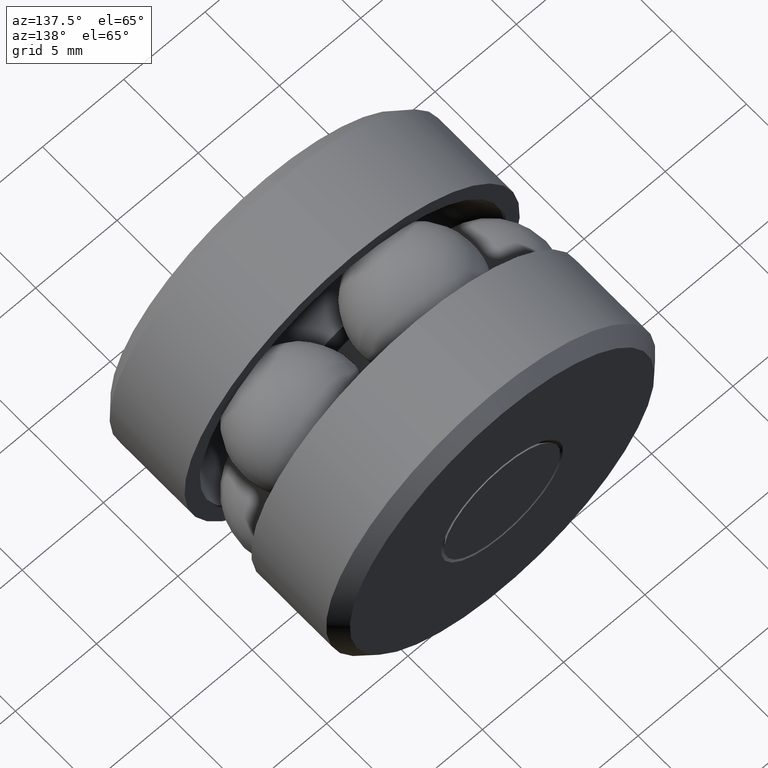
[diagram: clean part render]
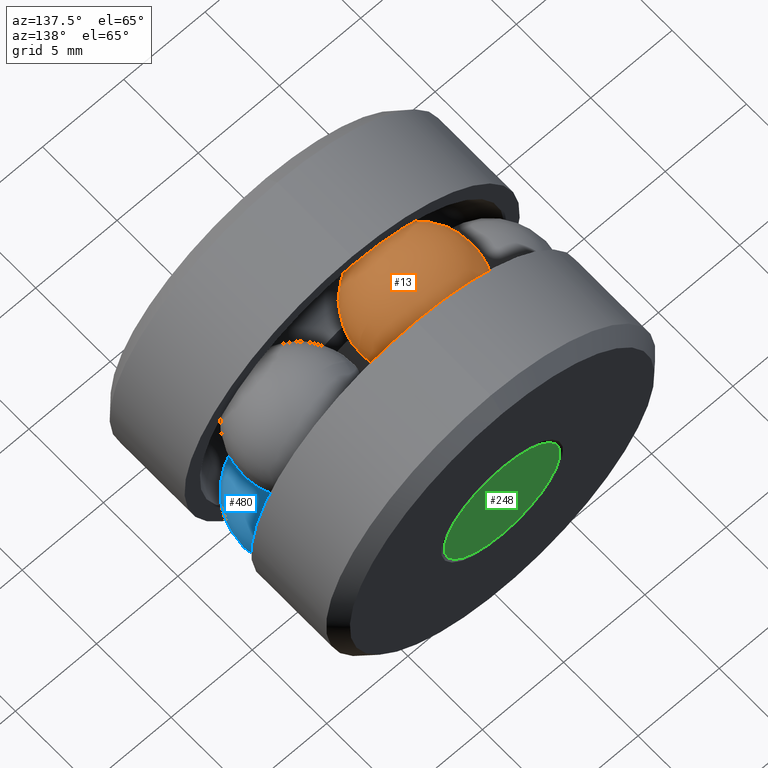
[diagram: same view with three faces highlighted in distinct colors, each labeled with its STEP entity id]
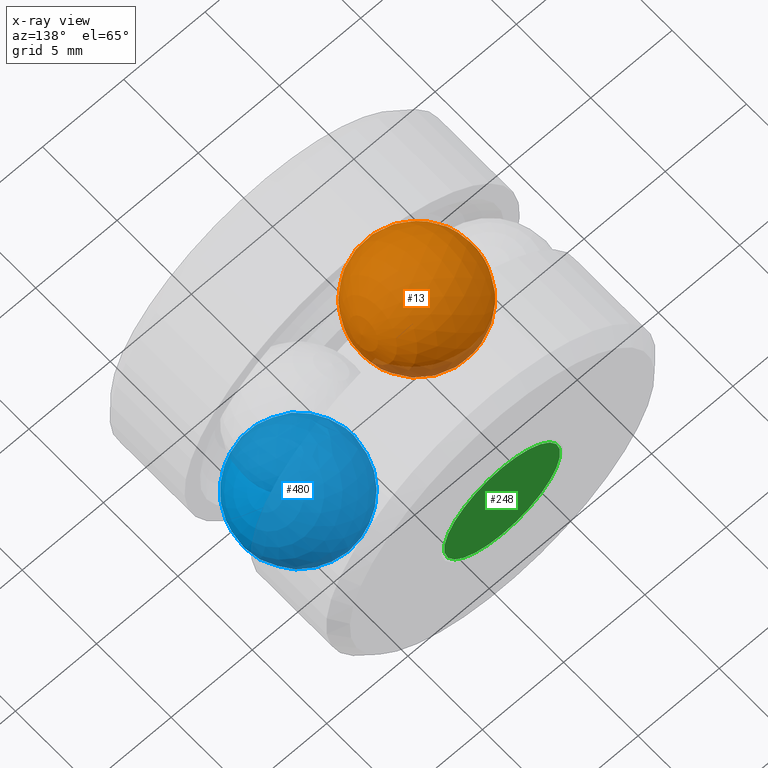
[diagram: x-ray of the same camera — body ghosted, the three highlighted faces saturated]
A machine part, auxiliary view with three faces highlighted in distinct colors.
The next image is the same camera in x-ray (body ghosted, the three faces saturated) — at least one of them is partly hidden behind the body in this view.
Their STEP definitions:

[orange] entity #13 — the highlighted spherical surface has radius 3.5687 mm.
#13 = ADVANCED_FACE ( 'NONE', ( ), #423, .T. ) ;
#217 = AXIS2_PLACEMENT_3D ( 'NONE', #489, #264, #361 ) ;
#264 = DIRECTION ( 'NONE',  ( -0.9510565162951544200, 0.0000000000000000000, -0.3090169943749447300 ) ) ;
#361 = DIRECTION ( 'NONE',  ( 0.3090169943749447300, 0.0000000000000000000, -0.9510565162951544200 ) ) ;
#423 = SPHERICAL_SURFACE ( 'NONE', #217, 0.1405000000000000400 ) ;
#489 = CARTESIAN_POINT ( 'NONE',  ( -0.07934011330576705400, 0.3125000000000000000, 0.2441837605587809400 ) ) ;

[blue] entity #480 — the highlighted spherical surface has radius 3.5687 mm.
#138 = SPHERICAL_SURFACE ( 'NONE', #463, 0.1405000000000000400 ) ;
#169 = CARTESIAN_POINT ( 'NONE',  ( 0.2077151133057663900, 0.3125000000000000000, -0.1509138635260942900 ) ) ;
#228 = DIRECTION ( 'NONE',  ( -0.8090169943749422300, 0.0000000000000000000, 0.5877852522924802400 ) ) ;
#232 = DIRECTION ( 'NONE',  ( 0.5877852522924802400, -0.0000000000000000000, 0.8090169943749422300 ) ) ;
#463 = AXIS2_PLACEMENT_3D ( 'NONE', #169, #232, #228 ) ;
#480 = ADVANCED_FACE ( 'NONE', ( ), #138, .T. ) ;

[green] entity #248 — the highlighted planar face has unit normal (-0, 1, 0).
#36 = CARTESIAN_POINT ( 'NONE',  ( 0.0000000000000000000, 0.6250000000000000000, 0.0000000000000000000 ) ) ;
#64 = VERTEX_POINT ( 'NONE', #205 ) ;
#140 = DIRECTION ( 'NONE',  ( 0.0000000000000000000, 0.0000000000000000000, 1.000000000000000000 ) ) ;
#156 = EDGE_LOOP ( 'NONE', ( #198 ) ) ;
#158 = DIRECTION ( 'NONE',  ( -0.0000000000000000000, 1.000000000000000000, 0.0000000000000000000 ) ) ;
#198 = ORIENTED_EDGE ( 'NONE', *, *, #517, .T. ) ;
#205 = CARTESIAN_POINT ( 'NONE',  ( 0.0000000000000000000, 0.6250000000000000000, 0.1406249999999992500 ) ) ;
#248 = ADVANCED_FACE ( 'NONE', ( #336 ), #251, .T. ) ;
#251 = PLANE ( 'NONE',  #384 ) ;
#303 = CARTESIAN_POINT ( 'NONE',  ( 0.0000000000000000000, 0.6250000000000000000, 0.0000000000000000000 ) ) ;
#336 = FACE_OUTER_BOUND ( 'NONE', #156, .T. ) ;
#337 = CIRCLE ( 'NONE', #511, 0.1406249999999992500 ) ;
#366 = DIRECTION ( 'NONE',  ( 0.0000000000000000000, 0.0000000000000000000, 1.000000000000000000 ) ) ;
#384 = AXIS2_PLACEMENT_3D ( 'NONE', #36, #158, #366 ) ;
#511 = AXIS2_PLACEMENT_3D ( 'NONE', #303, #516, #140 ) ;
#516 = DIRECTION ( 'NONE',  ( -0.0000000000000000000, 1.000000000000000000, -0.0000000000000000000 ) ) ;
#517 = EDGE_CURVE ( 'NONE', #64, #64, #337, .T. ) ;